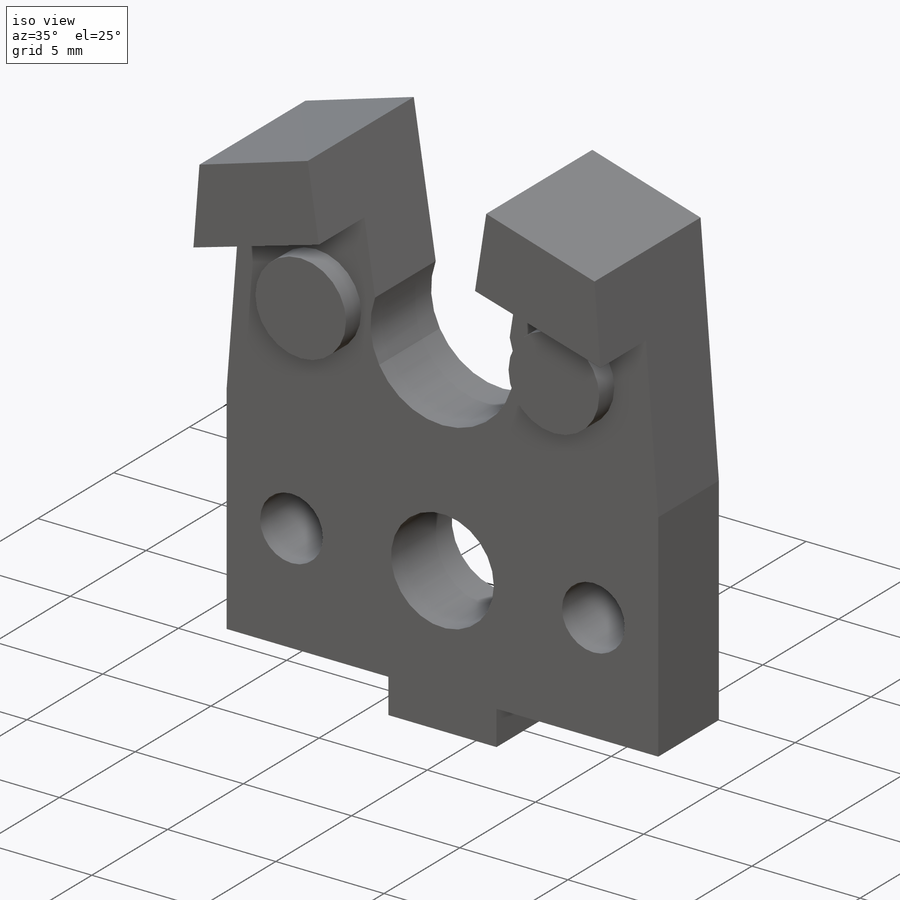
[diagram: iso view]
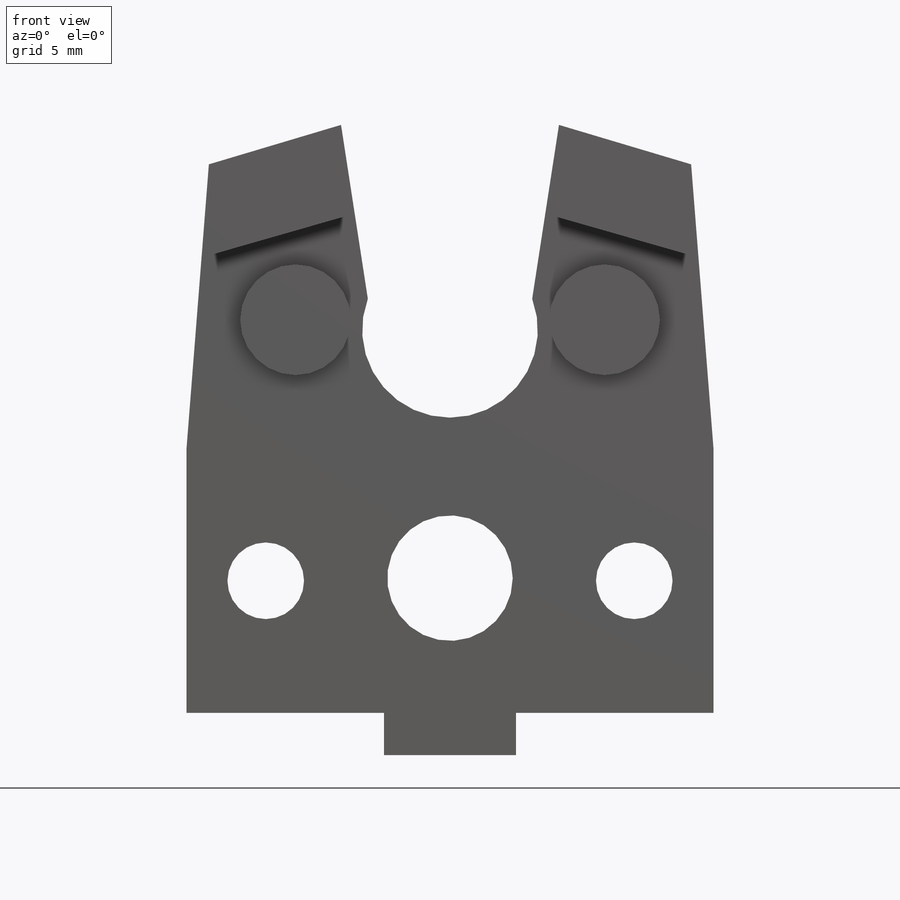
[diagram: front view]
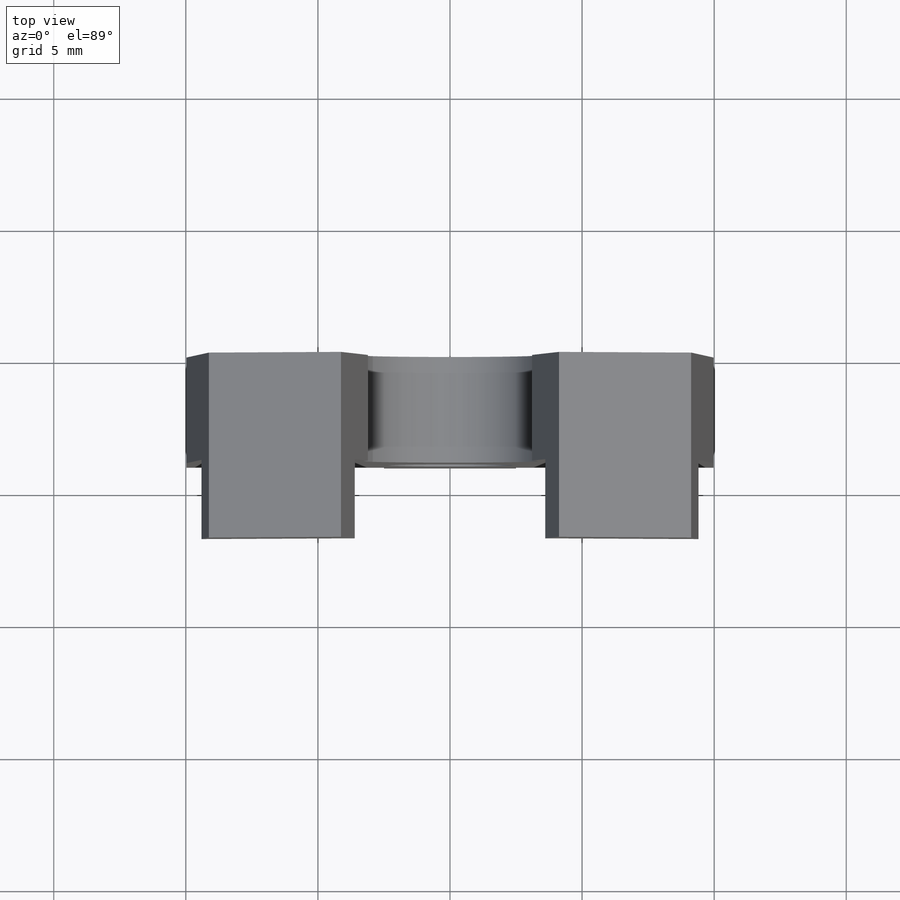
[diagram: top view]
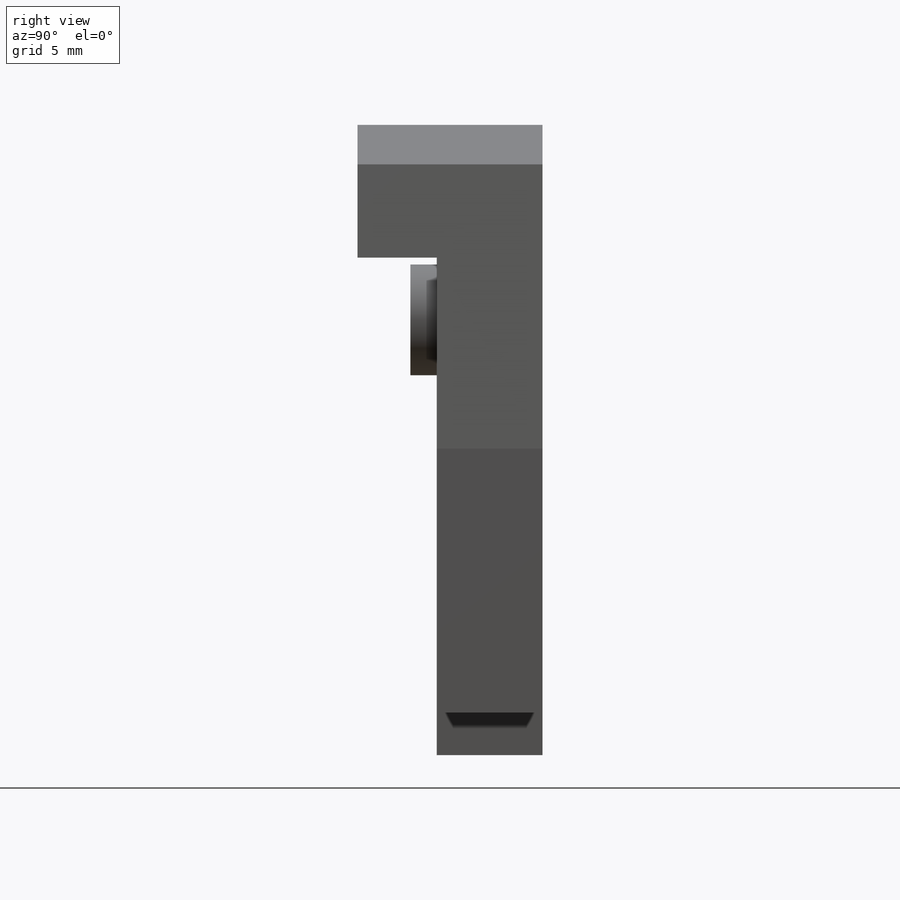
[diagram: right view]
SOLIDWORKS PART (.sldprt)
format: sldprt  version: not decoded by parser v0  size: 269,824 bytes
history: native  units: mm
features: sketch x9, cut_extrude x5, extrude x4, material x1, mirror x1 (+12 scaffold rows collapsed)
feature tree (32):
  scaffold x12  (default folders/planes/origin — collapsed)
  material  "ABS"
  sketch  "Sketch1"  dims[c1.D3=3.325mm c1.D4=~1.447842mm c1.D5=~11.943716mm c2.D4=0.7mm c2.D1=19.95mm c2.D2=10.0mm c2.D6=7.5mm c3.D4=~0.709573mm c3.D5=4.5mm c3.D6=4.5mm]
  extrude  "Boss-Extrude1"  Depth=4mm
  sketch  "Sketch2"  dims[D1=5.0mm D2=1.6mm]
  extrude  "Boss-Extrude2"  [1 undecoded]
  sketch  "Sketch3"  dims[D1=4.5mm]
  cut_extrude  "Cut-Extrude1"  [1 undecoded]
  sketch  "Sketch4"  dims[D1=7.6mm]
  cut_extrude  "Cut-Extrude2"  Depth=1.331606mm
  sketch  "Sketch5"  dims[D1=2.9mm D2=3.0mm]
  cut_extrude  "Cut-Extrude3"  Depth=14.2mm
  sketch  "Sketch6"  dims[D1=6.0mm]
  cut_extrude  "Cut-Extrude5"  Depth=2mm
  mirror  "Mirror1"
  sketch  "Sketch7"  dims[D1=4.75mm D2=6.7mm]
  cut_extrude  "Cut-Extrude6"  Depth=15mm
  sketch  "Sketch8"
  extrude  "Boss-Extrude3"  Depth=1mm
  sketch  "Sketch9"
  extrude  "Boss-Extrude4"  Depth=3mm
decode coverage: 14 of 19 modeling features carry decoded parameters
note: ~ marks probable driven/reference dimensions
note: 2 parameter values undecoded
note: suppression state not decoded; provenance and decode notes live in map.json
